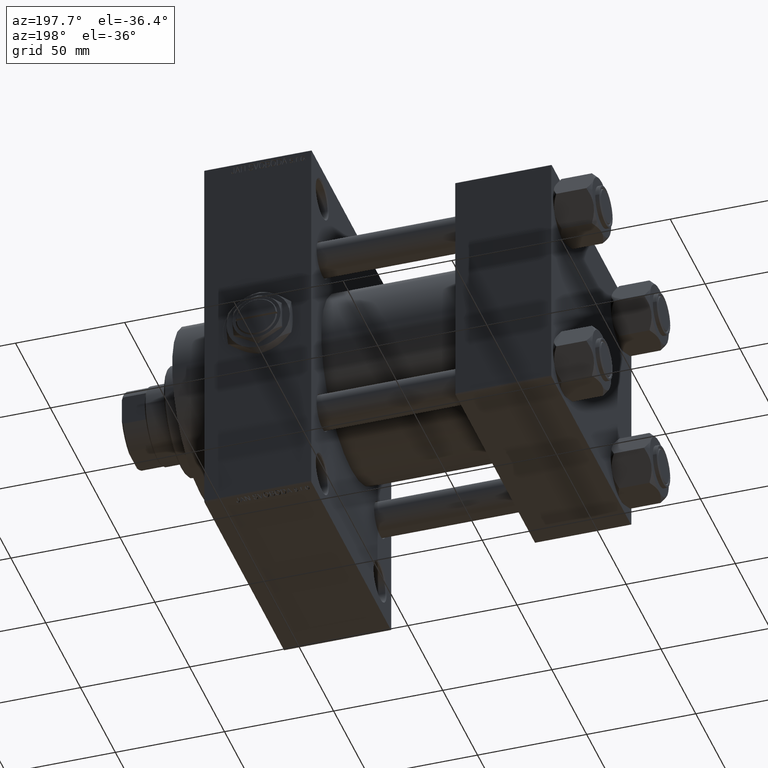
[diagram: clean part render]
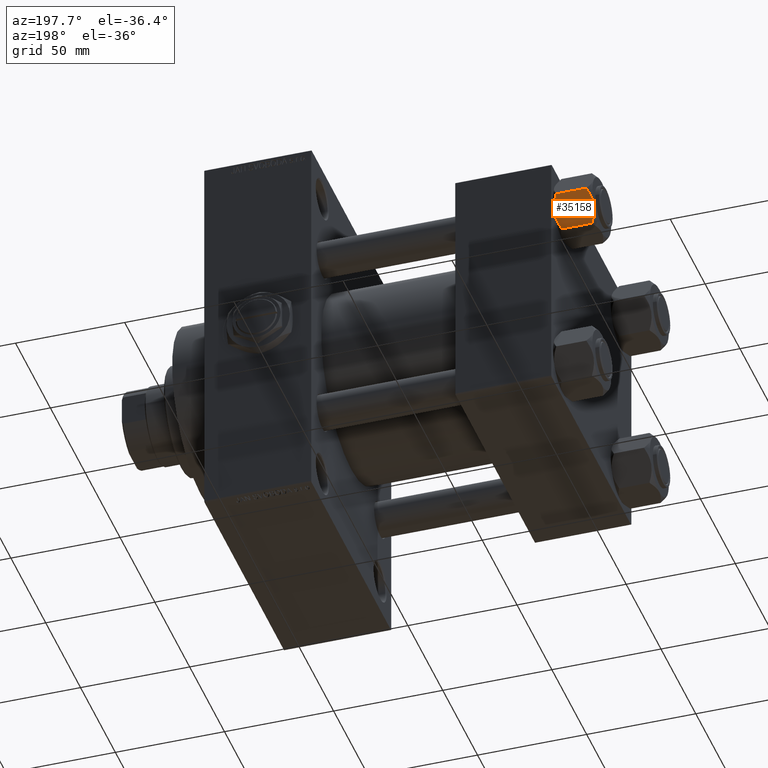
[diagram: same view with one face highlighted and labeled with its STEP entity id]
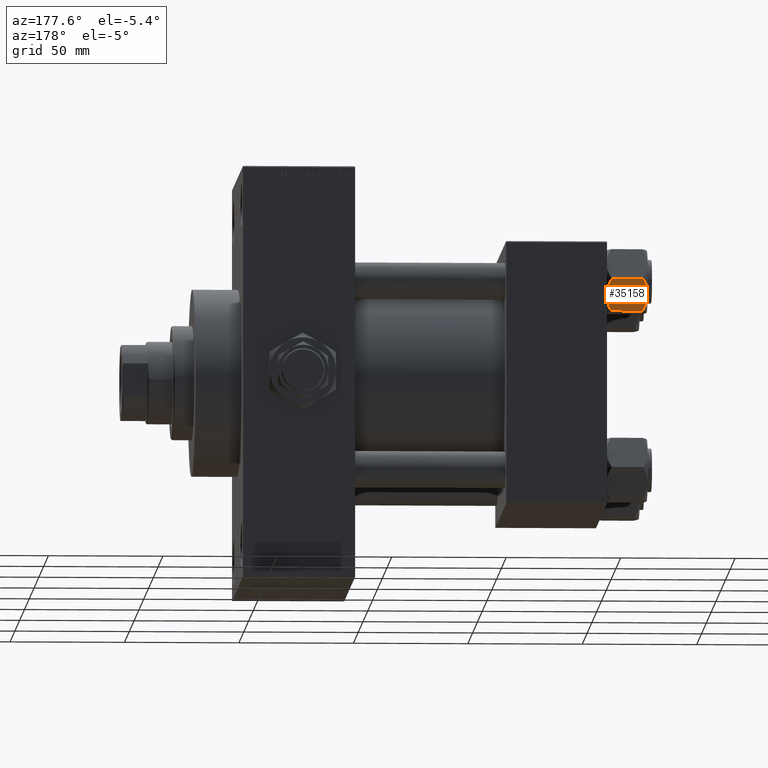
[diagram: same view with one face highlighted and labeled with its STEP entity id]
A machine part, auxiliary view. The second image highlights one B-rep face of the part: STEP entity #35158.
A second angle (auxiliary view) of the same face is appended — the face is thin or edge-on in the first view.
In plain terms, the highlighted planar face has unit normal (-0, -0.866, 0.5).
Its self-contained STEP definition (entity closure, byte-faithful):
#737 = VERTEX_POINT ( 'NONE', #37179 ) ;
#1264 = B_SPLINE_CURVE_WITH_KNOTS ( 'NONE', 3,
 ( #9459, #47536, #39350, #32354, #5989, #46806, #12713, #2264 ),
 .UNSPECIFIED., .F., .F.,
 ( 4, 2, 2, 4 ),
 ( 4.472842641970240738E-07, 0.003945636373369317863, 0.005918230917921878283, 0.007890825462474437835 ),
 .UNSPECIFIED. ) ;
#1963 = ORIENTED_EDGE ( 'NONE', *, *, #34059, .F. ) ;
#2264 = CARTESIAN_POINT ( 'NONE',  ( 11.71500000000000519, 6.763658403556469523, 0.000000000000000000 ) ) ;
#2825 = CARTESIAN_POINT ( 'NONE',  ( 15.52647173767732980, 0.1619957022865022300, -2.000000000000000000 ) ) ;
#2906 = CARTESIAN_POINT ( 'NONE',  ( 10.06459418565412278, 9.622245127110613083, -17.61639331488794014 ) ) ;
#3062 = DIRECTION ( 'NONE',  ( -0.8660254037844387076, -0.4999999999999999445, 0.000000000000000000 ) ) ;
#3260 = EDGE_CURVE ( 'NONE', #41859, #16401, #26404, .T. ) ;
#3424 = ORIENTED_EDGE ( 'NONE', *, *, #42289, .F. ) ;
#3630 = VECTOR ( 'NONE', #13103, 1000.000000000000000 ) ;
#3846 = CARTESIAN_POINT ( 'NONE',  ( 7.903528262322677023, 13.36532110482643176, -2.000000000000000000 ) ) ;
#4749 = VERTEX_POINT ( 'NONE', #43275 ) ;
#5174 = EDGE_CURVE ( 'NONE', #31139, #13447, #17315, .T. ) ;
#5646 = CARTESIAN_POINT ( 'NONE',  ( 10.38662926516872353, 9.064464007571851667, -17.75691532989870680 ) ) ;
#5676 = CARTESIAN_POINT ( 'NONE',  ( 7.810000000000001386, 13.52731680711293905, -16.00000000000000000 ) ) ;
#5946 = DIRECTION ( 'NONE',  ( -0.000000000000000000, -0.000000000000000000, 1.000000000000000000 ) ) ;
#5989 = CARTESIAN_POINT ( 'NONE',  ( 13.04337073483128506, 4.462852799541082938, -0.2430846701012968347 ) ) ;
#7197 = ORIENTED_EDGE ( 'NONE', *, *, #10892, .F. ) ;
#7361 = EDGE_CURVE ( 'NONE', #30092, #41859, #1264, .T. ) ;
#7516 = FACE_OUTER_BOUND ( 'NONE', #37887, .T. ) ;
#7818 = CARTESIAN_POINT ( 'NONE',  ( 11.05297796109638320, 7.910314210667883650, 2.165016213181991667E-15 ) ) ;
#8556 = VERTEX_POINT ( 'NONE', #44391 ) ;
#9459 = CARTESIAN_POINT ( 'NONE',  ( 15.52647173767732980, 0.1619957022865022300, -2.000000000000000000 ) ) ;
#10557 = EDGE_CURVE ( 'NONE', #737, #4749, #47224, .T. ) ;
#10892 = EDGE_CURVE ( 'NONE', #4749, #31139, #25076, .T. ) ;
#11387 = CARTESIAN_POINT ( 'NONE',  ( 7.810000000000000497, 13.52731680711293905, -1.999999999999998224 ) ) ;
#11544 = CARTESIAN_POINT ( 'NONE',  ( 9.439480280627263298, 10.70497417113492489, -0.7317196846281137645 ) ) ;
#12713 = CARTESIAN_POINT ( 'NONE',  ( 12.04818928091285812, 6.186557640478062225, 2.165016213181991667E-15 ) ) ;
#13017 = CARTESIAN_POINT ( 'NONE',  ( 14.30591678195076355, 2.276058899034896221, -17.05261278537718184 ) ) ;
#13103 = DIRECTION ( 'NONE',  ( -0.000000000000000000, -0.000000000000000000, 1.000000000000000000 ) ) ;
#13146 = DIRECTION ( 'NONE',  ( 0.4999999999999999445, -0.8660254037844387076, 0.000000000000000000 ) ) ;
#13297 = CARTESIAN_POINT ( 'NONE',  ( 11.71500000000000519, 6.763658403556469523, 0.000000000000000000 ) ) ;
#13363 = CARTESIAN_POINT ( 'NONE',  ( 11.71500000000000519, 6.763658403556469523, -18.00000000000000000 ) ) ;
#13447 = VERTEX_POINT ( 'NONE', #47979 ) ;
#13594 = CARTESIAN_POINT ( 'NONE',  ( 9.114548888011785976, 11.26777185211903998, -17.08577173959729478 ) ) ;
#14403 = DIRECTION ( 'NONE',  ( -0.4999999999999999445, 0.8660254037844387076, 0.000000000000000000 ) ) ;
#15027 = CARTESIAN_POINT ( 'NONE',  ( 9.124083218049239719, 11.25125790807803483, -0.9473872146228128344 ) ) ;
#15054 = VECTOR ( 'NONE', #14403, 999.9999999999998863 ) ;
#15268 = CARTESIAN_POINT ( 'NONE',  ( 10.40215497533437450, 9.037572688741345672, -0.1971866459924547788 ) ) ;
#16131 = LINE ( 'NONE', #5676, #42312 ) ;
#16401 = VERTEX_POINT ( 'NONE', #19532 ) ;
#16690 = ORIENTED_EDGE ( 'NONE', *, *, #5174, .F. ) ;
#17112 = CARTESIAN_POINT ( 'NONE',  ( 7.810000000000001386, 13.52731680711293905, -16.00000000000000000 ) ) ;
#17315 = LINE ( 'NONE', #28284, #3630 ) ;
#18781 = CARTESIAN_POINT ( 'NONE',  ( 7.810000000000000497, 13.52731680711293905, -16.00000000000000000 ) ) ;
#19532 = CARTESIAN_POINT ( 'NONE',  ( 7.903528262322677023, 13.36532110482643176, -2.000000000000000000 ) ) ;
#19745 = CARTESIAN_POINT ( 'NONE',  ( 15.22736220980735844, 0.6800686015852226429, -16.29368822085855228 ) ) ;
#20476 = CARTESIAN_POINT ( 'NONE',  ( 13.02784502466562699, 4.489744118371587156, -17.80281335400755083 ) ) ;
#21069 = CARTESIAN_POINT ( 'NONE',  ( 8.502393313253755025, 12.32805640973648309, -16.58801072835992585 ) ) ;
#22437 = VECTOR ( 'NONE', #44170, 999.9999999999998863 ) ;
#25045 = CARTESIAN_POINT ( 'NONE',  ( 11.04378428799595468, 7.926238119586002995, -17.94910618364699317 ) ) ;
#25076 = LINE ( 'NONE', #17112, #38348 ) ;
#25289 = CARTESIAN_POINT ( 'NONE',  ( 7.903528262322677023, 13.36532110482643176, -16.00000000000000000 ) ) ;
#26010 = VERTEX_POINT ( 'NONE', #11387 ) ;
#26404 = B_SPLINE_CURVE_WITH_KNOTS ( 'NONE', 3,
 ( #37437, #7818, #15268, #11544, #15027, #33697, #33947, #3846 ),
 .UNSPECIFIED., .F., .F.,
 ( 4, 2, 2, 4 ),
 ( 0.007890825462474437835, 0.01181022244528555538, 0.01376992093669111156, 0.01572961942809666946 ),
 .UNSPECIFIED. ) ;
#28284 = CARTESIAN_POINT ( 'NONE',  ( 15.62000000000000455, -1.379485931020374819E-15, -18.00000000000000000 ) ) ;
#28441 = CARTESIAN_POINT ( 'NONE',  ( 12.37702203890362895, 5.617002596445055396, -18.00000000000001066 ) ) ;
#28695 = ORIENTED_EDGE ( 'NONE', *, *, #3260, .F. ) ;
#29415 = CARTESIAN_POINT ( 'NONE',  ( 7.810000000000001386, 13.52731680711293905, -18.00000000000000000 ) ) ;
#30092 = VERTEX_POINT ( 'NONE', #2825 ) ;
#30156 = PLANE ( 'NONE',  #42134 ) ;
#31139 = VERTEX_POINT ( 'NONE', #32466 ) ;
#31548 = ORIENTED_EDGE ( 'NONE', *, *, #10557, .F. ) ;
#31678 = CARTESIAN_POINT ( 'NONE',  ( 15.52647173767732980, 0.1619957022865022300, -16.00000000000000000 ) ) ;
#32068 = LINE ( 'NONE', #40277, #34278 ) ;
#32146 = ORIENTED_EDGE ( 'NONE', *, *, #42668, .F. ) ;
#32166 = CARTESIAN_POINT ( 'NONE',  ( 13.99051971937273997, 2.822342635978008385, -17.26828031537188934 ) ) ;
#32229 = LINE ( 'NONE', #47647, #22437 ) ;
#32354 = CARTESIAN_POINT ( 'NONE',  ( 13.36540581434588049, 3.905071680002324630, -0.3836066851120584764 ) ) ;
#32466 = CARTESIAN_POINT ( 'NONE',  ( 15.62000000000000455, -1.379485931020374819E-15, -16.00000000000000000 ) ) ;
#33396 = DIRECTION ( 'NONE',  ( 0.4999999999999998890, -0.8660254037844385966, 0.000000000000000000 ) ) ;
#33697 = CARTESIAN_POINT ( 'NONE',  ( 8.506059550806622127, 12.32170630002230283, -1.434462921875002683 ) ) ;
#33947 = CARTESIAN_POINT ( 'NONE',  ( 8.202637790192646605, 12.84724820552771085, -1.706311779141445717 ) ) ;
#34059 = EDGE_CURVE ( 'NONE', #13447, #30092, #46798, .T. ) ;
#34278 = VECTOR ( 'NONE', #5946, 1000.000000000000000 ) ;
#34436 = B_SPLINE_CURVE_WITH_KNOTS ( 'NONE', 3,
 ( #25289, #21069, #13594, #2906, #5646, #25045, #40473, #13363 ),
 .UNSPECIFIED., .F., .F.,
 ( 4, 2, 2, 4 ),
 ( 4.472842641813524820E-07, 0.003945636373369301383, 0.005918230917921860935, 0.007890825462474420487 ),
 .UNSPECIFIED. ) ;
#35158 = ADVANCED_FACE ( 'NONE', ( #7516 ), #30156, .F. ) ;
#37179 = CARTESIAN_POINT ( 'NONE',  ( 11.71500000000000519, 6.763658403556469523, -18.00000000000000000 ) ) ;
#37437 = CARTESIAN_POINT ( 'NONE',  ( 11.71500000000000519, 6.763658403556469523, 0.000000000000000000 ) ) ;
#37887 = EDGE_LOOP ( 'NONE', ( #32146, #38053, #3424, #28695, #43671, #1963, #16690, #7197, #31548, #42583 ) ) ;
#38053 = ORIENTED_EDGE ( 'NONE', *, *, #40332, .T. ) ;
#38348 = VECTOR ( 'NONE', #13146, 999.9999999999998863 ) ;
#39290 = DIRECTION ( 'NONE',  ( 0.4999999999999999445, -0.8660254037844387076, 0.000000000000000000 ) ) ;
#39350 = CARTESIAN_POINT ( 'NONE',  ( 14.31545111198821552, 2.259544954993893295, -0.9142282604026940040 ) ) ;
#39763 = VERTEX_POINT ( 'NONE', #18781 ) ;
#40277 = CARTESIAN_POINT ( 'NONE',  ( 7.810000000000001386, 13.52731680711293905, -18.00000000000000000 ) ) ;
#40332 = EDGE_CURVE ( 'NONE', #39763, #26010, #32068, .T. ) ;
#40473 = CARTESIAN_POINT ( 'NONE',  ( 11.38181071908714870, 7.340759166634869715, -18.00000000000000355 ) ) ;
#41859 = VERTEX_POINT ( 'NONE', #13297 ) ;
#42134 = AXIS2_PLACEMENT_3D ( 'NONE', #29415, #3062, #33396 ) ;
#42289 = EDGE_CURVE ( 'NONE', #16401, #26010, #32229, .T. ) ;
#42312 = VECTOR ( 'NONE', #39290, 999.9999999999998863 ) ;
#42583 = ORIENTED_EDGE ( 'NONE', *, *, #45756, .F. ) ;
#42668 = EDGE_CURVE ( 'NONE', #39763, #8556, #16131, .T. ) ;
#42886 = CARTESIAN_POINT ( 'NONE',  ( 11.71500000000000519, 6.763658403556469523, -18.00000000000000000 ) ) ;
#43275 = CARTESIAN_POINT ( 'NONE',  ( 15.52647173767732980, 0.1619957022865022300, -16.00000000000000000 ) ) ;
#43671 = ORIENTED_EDGE ( 'NONE', *, *, #7361, .F. ) ;
#44170 = DIRECTION ( 'NONE',  ( -0.4999999999999999445, 0.8660254037844387076, 0.000000000000000000 ) ) ;
#44391 = CARTESIAN_POINT ( 'NONE',  ( 7.903528262322677023, 13.36532110482643176, -16.00000000000000000 ) ) ;
#44525 = CARTESIAN_POINT ( 'NONE',  ( 7.810000000000001386, 13.52731680711293905, -1.999999999999998224 ) ) ;
#45756 = EDGE_CURVE ( 'NONE', #8556, #737, #34436, .T. ) ;
#46798 = LINE ( 'NONE', #44525, #15054 ) ;
#46806 = CARTESIAN_POINT ( 'NONE',  ( 12.38621571200405924, 5.601078687526928945, -0.05089381635301384876 ) ) ;
#47224 = B_SPLINE_CURVE_WITH_KNOTS ( 'NONE', 3,
 ( #42886, #28441, #20476, #32166, #13017, #47354, #19745, #31678 ),
 .UNSPECIFIED., .F., .F.,
 ( 4, 2, 2, 4 ),
 ( 0.007890825462474420487, 0.01181022244528553804, 0.01376992093669109421, 0.01572961942809665212 ),
 .UNSPECIFIED. ) ;
#47354 = CARTESIAN_POINT ( 'NONE',  ( 14.92394044919338114, 1.205610507090631334, -16.56553707812499354 ) ) ;
#47536 = CARTESIAN_POINT ( 'NONE',  ( 14.92760668674625002, 1.199260397376449072, -1.411989271640066601 ) ) ;
#47647 = CARTESIAN_POINT ( 'NONE',  ( 7.810000000000001386, 13.52731680711293905, -1.999999999999998224 ) ) ;
#47979 = CARTESIAN_POINT ( 'NONE',  ( 15.62000000000000455, -1.379485931020374819E-15, -1.999999999999998224 ) ) ;